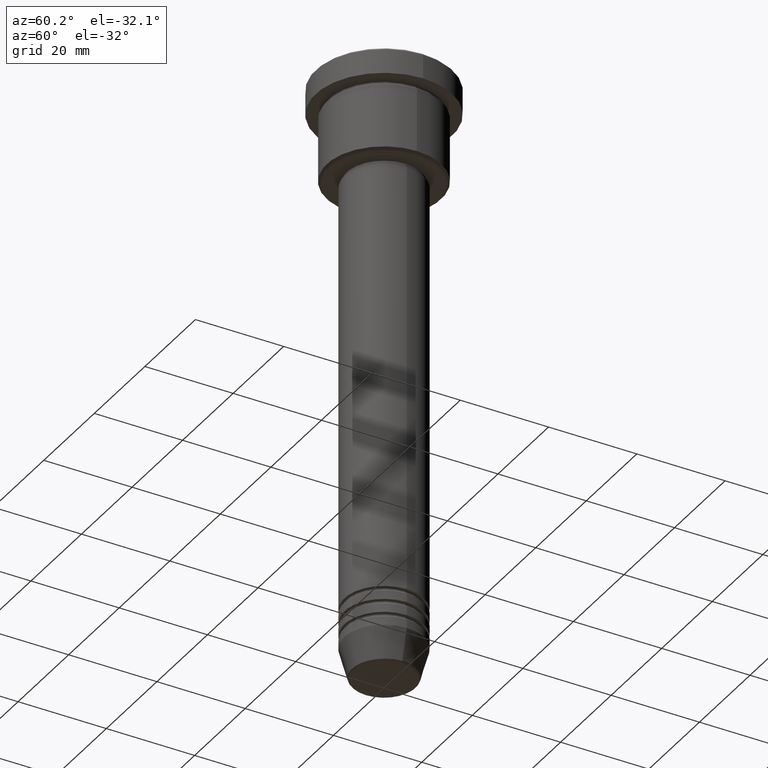
[diagram: clean part render]
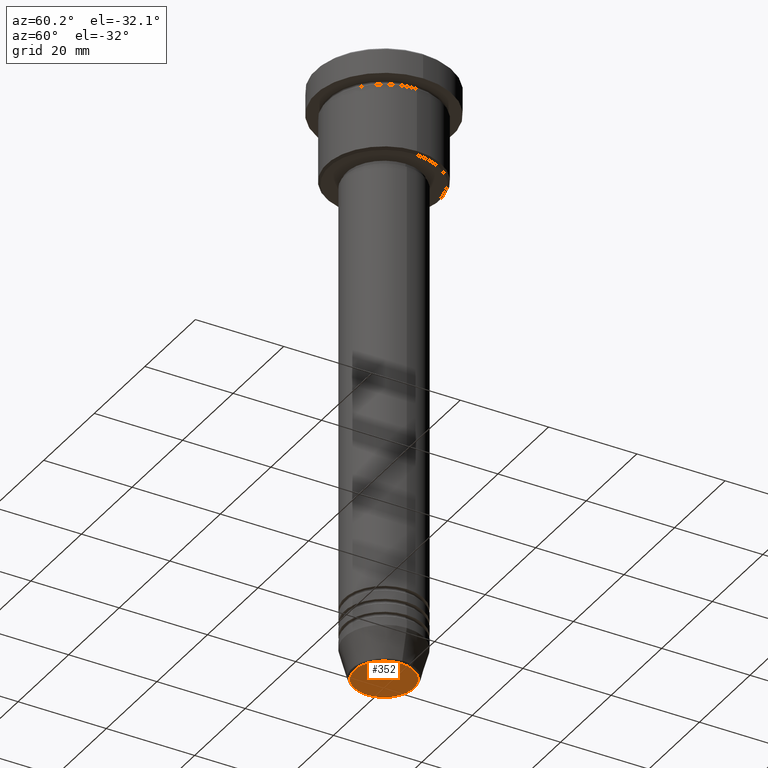
[diagram: same view with one face highlighted and labeled with its STEP entity id]
A machine part, auxiliary view. The second image highlights one B-rep face of the part: STEP entity #352.
In plain terms, the highlighted planar face has unit normal (0, -0, 1).
Its self-contained STEP definition (entity closure, byte-faithful):
#76 = CARTESIAN_POINT ( 'NONE',  ( 0.000000000000000000, 0.000000000000000000, -137.0000000000000000 ) ) ;
#147 = PLANE ( 'NONE',  #527 ) ;
#153 = CARTESIAN_POINT ( 'NONE',  ( 0.000000000000000000, 0.000000000000000000, -137.0000000000000000 ) ) ;
#187 = CARTESIAN_POINT ( 'NONE',  ( -6.740692158992658278, 8.550696569392685681E-16, -137.0000000000000000 ) ) ;
#230 = AXIS2_PLACEMENT_3D ( 'NONE', #1138, #240, #590 ) ;
#240 = DIRECTION ( 'NONE',  ( 0.000000000000000000, 0.000000000000000000, -1.000000000000000000 ) ) ;
#352 = ADVANCED_FACE ( 'NONE', ( #568 ), #147, .F. ) ;
#379 = CIRCLE ( 'NONE', #581, 6.740692158992658278 ) ;
#428 = DIRECTION ( 'NONE',  ( 0.000000000000000000, -0.000000000000000000, 1.000000000000000000 ) ) ;
#497 = EDGE_CURVE ( 'NONE', #931, #805, #731, .T. ) ;
#527 = AXIS2_PLACEMENT_3D ( 'NONE', #153, #428, #600 ) ;
#568 = FACE_OUTER_BOUND ( 'NONE', #1052, .T. ) ;
#581 = AXIS2_PLACEMENT_3D ( 'NONE', #76, #595, #962 ) ;
#590 = DIRECTION ( 'NONE',  ( 1.000000000000000000, 0.000000000000000000, 0.000000000000000000 ) ) ;
#595 = DIRECTION ( 'NONE',  ( 0.000000000000000000, 0.000000000000000000, -1.000000000000000000 ) ) ;
#600 = DIRECTION ( 'NONE',  ( 1.000000000000000000, 0.000000000000000000, 0.000000000000000000 ) ) ;
#686 = EDGE_CURVE ( 'NONE', #805, #931, #379, .T. ) ;
#731 = CIRCLE ( 'NONE', #230, 6.740692158992658278 ) ;
#805 = VERTEX_POINT ( 'NONE', #187 ) ;
#836 = ORIENTED_EDGE ( 'NONE', *, *, #497, .T. ) ;
#931 = VERTEX_POINT ( 'NONE', #1077 ) ;
#962 = DIRECTION ( 'NONE',  ( 1.000000000000000000, 0.000000000000000000, 0.000000000000000000 ) ) ;
#1014 = ORIENTED_EDGE ( 'NONE', *, *, #686, .T. ) ;
#1052 = EDGE_LOOP ( 'NONE', ( #836, #1014 ) ) ;
#1077 = CARTESIAN_POINT ( 'NONE',  ( 6.740692158992658278, 0.000000000000000000, -137.0000000000000000 ) ) ;
#1138 = CARTESIAN_POINT ( 'NONE',  ( 0.000000000000000000, 0.000000000000000000, -137.0000000000000000 ) ) ;